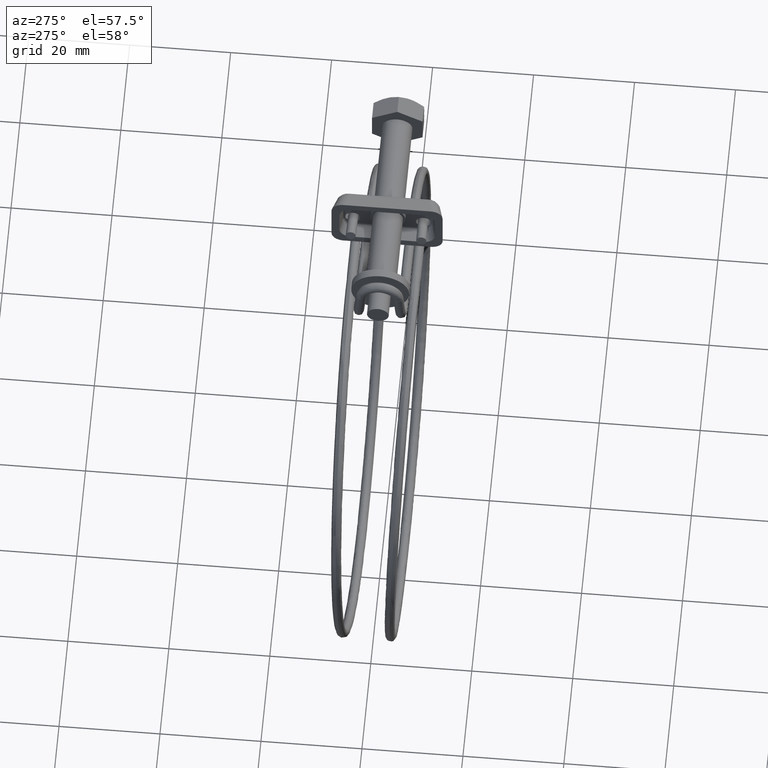
[diagram: clean part render]
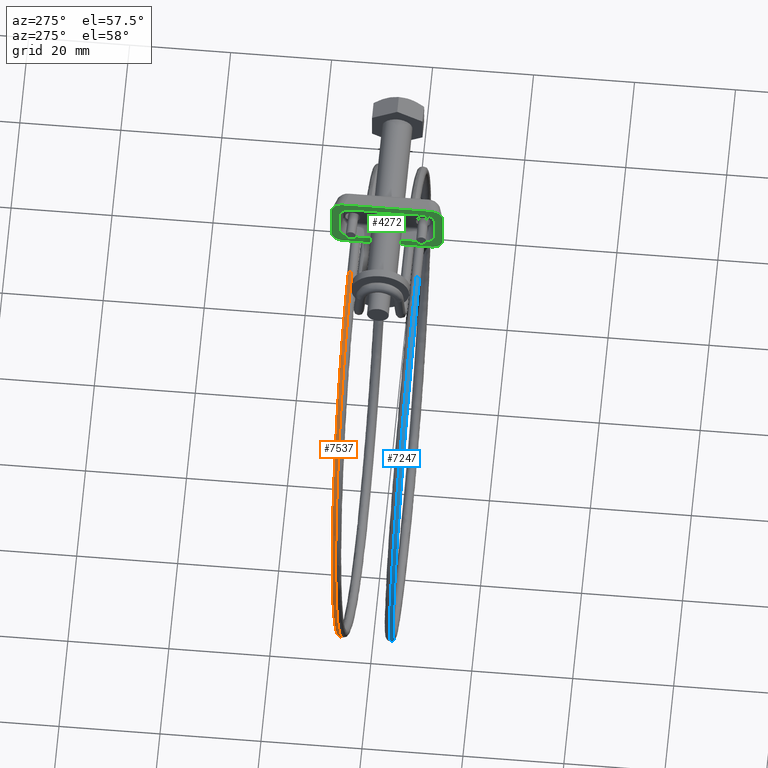
[diagram: same view with three faces highlighted in distinct colors, each labeled with its STEP entity id]
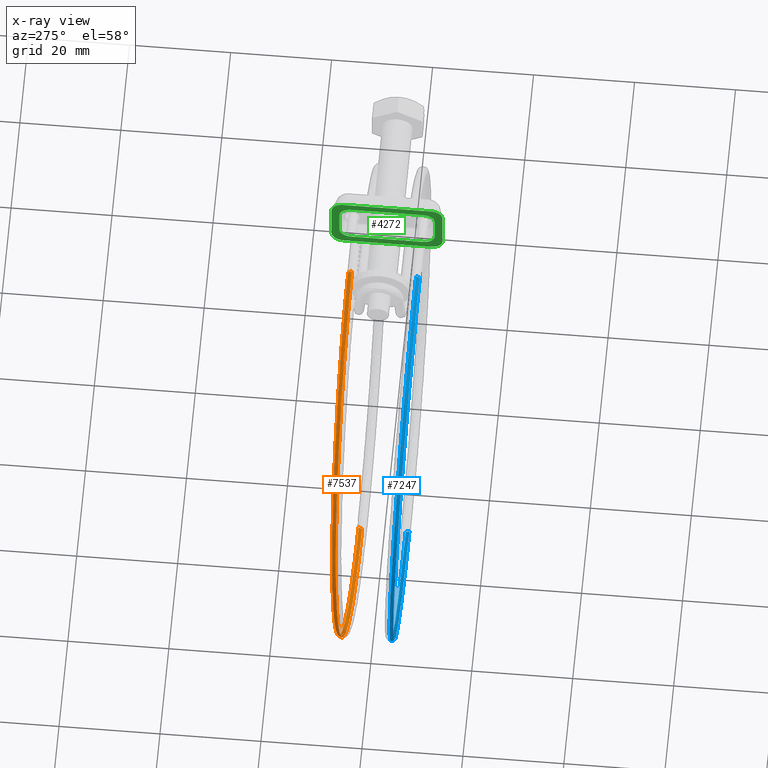
[diagram: x-ray of the same camera — body ghosted, the three highlighted faces saturated]
A machine part, auxiliary view with three faces highlighted in distinct colors.
The next image is the same camera in x-ray (body ghosted, the three faces saturated) — at least one of them is partly hidden behind the body in this view.
Their STEP definitions:

[orange] entity #7537 — the highlighted face is a freeform B-spline surface patch.
#5705=CARTESIAN_POINT('',(-30.049999999999240,6.353676709967662,-6.850955199523075));
#5706=VERTEX_POINT('',#5705);
#5783=CARTESIAN_POINT('',(-30.049999999999240,7.068152112521496,-7.197955006450780));
#5784=VERTEX_POINT('',#5783);
#5796=CARTESIAN_POINT('',(-30.049999999999230,6.353676709967664,-6.850955199523041));
#5797=CARTESIAN_POINT('',(-30.049999999999230,6.615226288915842,-6.862389236607092));
#5798=CARTESIAN_POINT('',(-30.049999999999230,6.870458320393396,-6.981423124156530));
#5799=CARTESIAN_POINT('',(-30.049999999999230,7.054391320979800,-7.182173126469506));
#5800=CARTESIAN_POINT('',(-30.049999999999230,7.061337033208039,-7.190009159293809));
#5801=CARTESIAN_POINT('',(-30.049999999999240,7.068152112521496,-7.197955006450780));
#5802=B_SPLINE_CURVE_WITH_KNOTS('',3,(#5796,#5797,#5798,#5799,#5800,#5801),.UNSPECIFIED.,.F.,.U.,(4,2,4),(0.0,0.125000000000000,0.130000190141412),.UNSPECIFIED.);
#5803=EDGE_CURVE('',#5706,#5784,#5802,.T.);
#6621=CARTESIAN_POINT('',(-30.049999996519482,4.312567047723819,-100.849843094641700));
#6622=VERTEX_POINT('',#6621);
#6638=CARTESIAN_POINT('',(-30.050000000001148,5.028950799201400,-100.534536873659600));
#6639=VERTEX_POINT('',#6638);
#6640=CARTESIAN_POINT('',(-30.049999996519482,4.312567047723819,-100.849843094641700));
#6641=CARTESIAN_POINT('',(-30.049999997574009,4.570108268789253,-100.846479671048000));
#6642=CARTESIAN_POINT('',(-30.049999998803720,4.824950524668435,-100.739239819360510));
#6643=CARTESIAN_POINT('',(-30.049999999915190,5.014513843253244,-100.549700837089010));
#6644=CARTESIAN_POINT('',(-30.049999999958320,5.021795177343359,-100.542176566126800));
#6645=CARTESIAN_POINT('',(-30.050000000001148,5.028950799201400,-100.534536873659600));
#6646=B_SPLINE_CURVE_WITH_KNOTS('',3,(#6640,#6641,#6642,#6643,#6644,#6645),.UNSPECIFIED.,.F.,.U.,(4,2,4),(0.002000191899729,0.125000000000000,0.130000190141358),.UNSPECIFIED.);
#6647=EDGE_CURVE('',#6622,#6639,#6646,.T.);
#7420=CARTESIAN_POINT('',(-30.049999999999240,7.068152112521496,-7.197955006450780));
#7421=CARTESIAN_POINT('',(-36.160116921835588,7.068371882910762,-7.197988453337161));
#7422=CARTESIAN_POINT('',(-42.265746676671263,7.041612742717636,-8.412695671230223));
#7423=CARTESIAN_POINT('',(-53.553609727583158,6.939458790373820,-13.088399014150310));
#7424=CARTESIAN_POINT('',(-58.730404985897103,6.863884518831451,-16.547519937898610));
#7425=CARTESIAN_POINT('',(-67.369534526239903,6.675134492660512,-25.186824712259341));
#7426=CARTESIAN_POINT('',(-70.828473455190348,6.562032997784112,-30.363609608668309));
#7427=CARTESIAN_POINT('',(-75.503850253080870,6.315424343548799,-41.651170024668332));
#7428=CARTESIAN_POINT('',(-76.718451300662508,6.182014151884658,-47.757507222206172));
#7429=CARTESIAN_POINT('',(-76.718451300662508,5.915088832538879,-59.974984657902311));
#7430=CARTESIAN_POINT('',(-75.503850253081481,5.781678640870944,-66.081321855512314));
#7431=CARTESIAN_POINT('',(-70.828473455191357,5.535069986643213,-77.368882271367852));
#7432=CARTESIAN_POINT('',(-67.369534526289257,5.421968491764744,-82.545667167741939));
#7433=CARTESIAN_POINT('',(-58.730404985850562,5.233218465590345,-91.184971942318015));
#7434=CARTESIAN_POINT('',(-53.553609727574852,5.157644194062054,-94.644092865877795));
#7435=CARTESIAN_POINT('',(-42.265746676683101,5.055490241693510,-99.319796208960767));
#7436=CARTESIAN_POINT('',(-36.160116956295120,5.028951531033727,-100.534536885006900));
#7437=CARTESIAN_POINT('',(-30.050000000001148,5.028950799201400,-100.534536873659600));
#7438=B_SPLINE_CURVE_WITH_KNOTS('',3,(#7420,#7421,#7422,#7423,#7424,#7425,#7426,#7427,#7428,#7429,#7430,#7431,#7432,#7433,#7434,#7435,#7436,#7437),.UNSPECIFIED.,.F.,.U.,(4,2,2,2,2,2,2,2,4),(0.037631751728579,0.064538594476331,0.091445437224084,0.118352279971836,0.145259122719588,0.172165965467341,0.199072808215093,0.225979650962846,0.252886493710599),.UNSPECIFIED.);
#7439=EDGE_CURVE('',#5784,#6639,#7438,.T.);
#7445=CARTESIAN_POINT('',(-30.049999999999240,6.353676709967662,-6.850955199523075));
#7446=CARTESIAN_POINT('',(-36.202801276756468,6.353855767857408,-6.851964725273659));
#7447=CARTESIAN_POINT('',(-42.352942228809717,6.327138886733544,-8.073687392428404));
#7448=CARTESIAN_POINT('',(-48.036801800559239,6.276019646372554,-10.428023610977490));
#7449=CARTESIAN_POINT('',(-53.721187306125863,6.224895675891675,-12.782577678862671));
#7450=CARTESIAN_POINT('',(-58.934574776243217,6.149239658608952,-16.266464249497741));
#7451=CARTESIAN_POINT('',(-63.284734426197559,6.054777983863750,-20.616733131959180));
#7452=CARTESIAN_POINT('',(-67.635227731822468,5.960309063942287,-24.967335678469279));
#7453=CARTESIAN_POINT('',(-71.118737071128919,5.847107369332308,-30.180748006341251));
#7454=CARTESIAN_POINT('',(-73.472991635519620,5.723688624451530,-35.864543154082703));
#7455=CARTESIAN_POINT('',(-75.827385772590731,5.600262562653840,-41.548675267306002));
#7456=CARTESIAN_POINT('',(-77.050348629244027,5.466726498079639,-47.698264299555419));
#7457=CARTESIAN_POINT('',(-77.050356061689172,5.333137276212516,-53.850399479916462));
#7458=CARTESIAN_POINT('',(-77.050363737835340,5.195167822934789,-60.204255842440674));
#7459=CARTESIAN_POINT('',(-75.745720306392059,5.057262931040140,-66.555405377104478));
#7460=CARTESIAN_POINT('',(-73.237824865270497,4.930490181994941,-72.393815752060291));
#7461=CARTESIAN_POINT('',(-70.690369180737008,4.801717684185102,-78.324322843563706));
#7462=CARTESIAN_POINT('',(-66.908519107806299,4.684466493409830,-83.722225970584375));
#7463=CARTESIAN_POINT('',(-62.197859417219803,4.588654300200918,-88.136272478650127));
#7464=CARTESIAN_POINT('',(-57.929511062677982,4.501838473100195,-92.135858393808377));
#7465=CARTESIAN_POINT('',(-52.909879364653648,4.432370804449024,-95.332554827242959));
#7466=CARTESIAN_POINT('',(-47.476261595149957,4.385317453310222,-97.500801816884731));
#7467=CARTESIAN_POINT('',(-41.949734700165472,4.337459539559418,-99.706123540190077));
#7468=CARTESIAN_POINT('',(-36.000800834641062,4.312528522338790,-100.848899198973700));
#7469=CARTESIAN_POINT('',(-30.049999996519482,4.312567047723819,-100.849843094641700));
#7470=B_SPLINE_CURVE_WITH_KNOTS('',3,(#7445,#7446,#7447,#7448,#7449,#7450,#7451,#7452,#7453,#7454,#7455,#7456,#7457,#7458,#7459,#7460,#7461,#7462,#7463,#7464,#7465,#7466,#7467,#7468,#7469),.UNSPECIFIED.,.F.,.U.,(4,3,3,3,3,3,3,3,4),(0.0,18.458404086546160,36.918516149652312,55.380044096671902,73.842666540853784,92.910656376370213,112.279430011283000,129.829556427606490,147.679771471173890),.UNSPECIFIED.);
#7471=EDGE_CURVE('',#5706,#6622,#7470,.T.);
#7478=CARTESIAN_POINT('',(-29.311578091289132,6.349569571912408,-6.850772750363954));
#7479=CARTESIAN_POINT('',(-29.311654120045841,6.624368262090663,-6.861615675998201));
#7480=CARTESIAN_POINT('',(-29.313600515151698,6.892610686474238,-6.991362736083935));
#7481=CARTESIAN_POINT('',(-29.316833772481392,7.070783530089892,-7.201049758838473));
#7482=CARTESIAN_POINT('',(-29.557715256571829,6.349557527677900,-6.851713598119168));
#7483=CARTESIAN_POINT('',(-29.557765942771809,6.624356219540911,-6.862556426812932));
#7484=CARTESIAN_POINT('',(-29.559063548781349,6.892598687034219,-6.992301005130524));
#7485=CARTESIAN_POINT('',(-29.561219069070528,7.070771602157074,-7.201983905311978));
#7486=CARTESIAN_POINT('',(-35.957009695807777,6.350866161227896,-6.801835531668514));
#7487=CARTESIAN_POINT('',(-35.956401503888927,6.625664729771795,-6.812683494938008));
#7488=CARTESIAN_POINT('',(-35.940831319412219,6.893904039612896,-6.942559522269391));
#7489=CARTESIAN_POINT('',(-35.914966882661147,7.072071706707952,-7.152460779636734));
#7490=CARTESIAN_POINT('',(-48.504220869298322,6.296056883647588,-9.297848046184145));
#7491=CARTESIAN_POINT('',(-48.502320810620432,6.570861081271622,-9.308439004978290));
#7492=CARTESIAN_POINT('',(-48.453677835630870,6.839244500713429,-9.431735518383192));
#7493=CARTESIAN_POINT('',(-48.372874480424358,7.017651559100163,-9.630707205228863));
#7494=CARTESIAN_POINT('',(-64.149604537076499,6.067746301761224,-19.752061228719889));
#7495=CARTESIAN_POINT('',(-64.146093974944264,6.342574007312754,-19.761575990228181));
#7496=CARTESIAN_POINT('',(-64.056220863523009,6.611559247621061,-19.857321019365038));
#7497=CARTESIAN_POINT('',(-63.906928001458482,6.790966020579288,-20.010525514365529));
#7498=CARTESIAN_POINT('',(-74.603154397246982,5.725935324877046,-35.396444857165307));
#7499=CARTESIAN_POINT('',(-74.598568104584984,6.000798206024785,-35.404349626791593));
#7500=CARTESIAN_POINT('',(-74.481155458007464,6.270683968905658,-35.458877615872503));
#7501=CARTESIAN_POINT('',(-74.286115253193245,6.451586646556726,-35.543614359172608));
#7502=CARTESIAN_POINT('',(-78.273166239907695,5.322756641785001,-53.850394731430256));
#7503=CARTESIAN_POINT('',(-78.268202364403251,5.597661005564730,-53.856400793504193));
#7504=CARTESIAN_POINT('',(-78.141123304380855,5.868608755975841,-53.862320397638470));
#7505=CARTESIAN_POINT('',(-77.930025721612978,6.051275555900698,-53.866311244932987));
#7506=CARTESIAN_POINT('',(-74.603166441910091,4.919577576702126,-72.304362089969018));
#7507=CARTESIAN_POINT('',(-74.598580148129074,5.194523423151954,-72.308469442726036));
#7508=CARTESIAN_POINT('',(-74.481167472489560,5.466533162084009,-72.265780616505097));
#7509=CARTESIAN_POINT('',(-74.286127219496777,5.650964085930852,-72.189025492402720));
#7510=CARTESIAN_POINT('',(-64.149602213349837,4.577782567178864,-87.948713274191689));
#7511=CARTESIAN_POINT('',(-64.146091651437132,4.852763588373964,-87.951210638510119));
#7512=CARTESIAN_POINT('',(-64.056218545617597,5.125673828111897,-87.867304853654574));
#7513=CARTESIAN_POINT('',(-63.906925692848048,5.311600620307202,-87.722082112778494));
#7514=CARTESIAN_POINT('',(-48.504221647717252,4.349380574023034,-98.402920053054331));
#7515=CARTESIAN_POINT('',(-48.502321588946351,4.624385107808542,-98.404341219724330));
#7516=CARTESIAN_POINT('',(-48.453678612142511,4.897897287616204,-98.292883984151160));
#7517=CARTESIAN_POINT('',(-48.372875253815792,5.084823993504321,-98.101894108795406));
#7518=CARTESIAN_POINT('',(-35.957009566955129,4.294848175717587,-100.898972573336290));
#7519=CARTESIAN_POINT('',(-35.956401375054632,4.569858324477091,-100.900136734594600));
#7520=CARTESIAN_POINT('',(-35.940831190850787,4.843514253404149,-100.782099829808000));
#7521=CARTESIAN_POINT('',(-35.914966754571623,5.030679748417191,-100.580180121223190));
#7522=CARTESIAN_POINT('',(-29.557715251410421,4.295937896006179,-100.849061452425600));
#7523=CARTESIAN_POINT('',(-29.557765937610700,4.570947932595407,-100.850230749135210));
#7524=CARTESIAN_POINT('',(-29.559063543635670,4.844600988740802,-100.732325419844600));
#7525=CARTESIAN_POINT('',(-29.561219063950809,5.031761711588420,-100.530624282264400));
#7526=CARTESIAN_POINT('',(-29.311578083626191,4.295917340582109,-100.850001000005090));
#7527=CARTESIAN_POINT('',(-29.311654112383341,4.570927379289620,-100.851170199809000));
#7528=CARTESIAN_POINT('',(-29.313600507512120,4.844580489620191,-100.733262393708600));
#7529=CARTESIAN_POINT('',(-29.316833764880268,5.031741302475912,-100.531557141932790));
#7530=B_SPLINE_SURFACE_WITH_KNOTS('',3,3,((#7478,#7482,#7486,#7490,#7494,#7498,#7502,#7506,#7510,#7514,#7518,#7522,#7526),(#7479,#7483,#7487,#7491,#7495,#7499,#7503,#7507,#7511,#7515,#7519,#7523,#7527),(#7480,#7484,#7488,#7492,#7496,#7500,#7504,#7508,#7512,#7516,#7520,#7524,#7528),(#7481,#7485,#7489,#7493,#7497,#7501,#7505,#7509,#7513,#7517,#7521,#7525,#7529)),.UNSPECIFIED.,.F.,.F.,.U.,(4,4),(4,1,1,1,1,1,1,1,1,1,4),(0.0,0.825543441013491),(0.0,0.738416891231972,19.198839584216639,37.659262277201300,56.119684970185908,74.580107663170494,93.040530356155259,111.500953049139890,129.961375742124600,148.421798435109310,149.160215329834500),.UNSPECIFIED.);
#7531=ORIENTED_EDGE('',*,*,#6647,.F.);
#7532=ORIENTED_EDGE('',*,*,#7471,.F.);
#7533=ORIENTED_EDGE('',*,*,#5803,.T.);
#7534=ORIENTED_EDGE('',*,*,#7439,.T.);
#7535=EDGE_LOOP('',(#7531,#7532,#7533,#7534));
#7536=FACE_OUTER_BOUND('',#7535,.T.);
#7537=ADVANCED_FACE('',(#7536),#7530,.T.);

[blue] entity #7247 — the highlighted face is a freeform B-spline surface patch.
#4595=CARTESIAN_POINT('',(-30.050000000001202,-6.353676782668250,-6.850955199523090));
#4596=VERTEX_POINT('',#4595);
#4604=CARTESIAN_POINT('',(-30.050000000001202,-7.068152185222118,-7.197955006450738));
#4605=VERTEX_POINT('',#4604);
#4606=CARTESIAN_POINT('',(-30.050000000001202,-6.353676782668250,-6.850955199523090));
#4607=CARTESIAN_POINT('',(-30.050000000001202,-6.615226361616431,-6.862389236607090));
#4608=CARTESIAN_POINT('',(-30.050000000001202,-6.870458393093999,-6.981423124156490));
#4609=CARTESIAN_POINT('',(-30.050000000001202,-7.054391393680445,-7.182173126469433));
#4610=CARTESIAN_POINT('',(-30.050000000001202,-7.061337105908689,-7.190009159293738));
#4611=CARTESIAN_POINT('',(-30.050000000001202,-7.068152185222118,-7.197955006450738));
#4612=B_SPLINE_CURVE_WITH_KNOTS('',3,(#4606,#4607,#4608,#4609,#4610,#4611),.UNSPECIFIED.,.F.,.U.,(4,2,4),(0.0,0.125000000000000,0.130000190141414),.UNSPECIFIED.);
#4613=EDGE_CURVE('',#4596,#4605,#4612,.T.);
#6106=CARTESIAN_POINT('',(-30.049999999999081,-5.028950799199253,-100.534536873659600));
#6107=VERTEX_POINT('',#6106);
#6119=CARTESIAN_POINT('',(-30.049999999351751,-4.306285019941678,-100.849961522102010));
#6120=VERTEX_POINT('',#6119);
#6121=CARTESIAN_POINT('',(-30.049999999351751,-4.306285019941678,-100.849961522102010));
#6122=CARTESIAN_POINT('',(-30.049999999547641,-4.565959695528898,-100.848258487153400));
#6123=CARTESIAN_POINT('',(-30.049999999776649,-4.823469649266651,-100.740740414047390));
#6124=CARTESIAN_POINT('',(-30.049999999983079,-5.014513864648077,-100.549702234600700));
#6125=CARTESIAN_POINT('',(-30.049999999991030,-5.021795188001790,-100.542177262410600));
#6126=CARTESIAN_POINT('',(-30.049999999999081,-5.028950799199253,-100.534536873659600));
#6127=B_SPLINE_CURVE_WITH_KNOTS('',3,(#6121,#6122,#6123,#6124,#6125,#6126),.UNSPECIFIED.,.F.,.U.,(4,2,4),(0.001000048621619,0.125000000000000,0.130000190141357),.UNSPECIFIED.);
#6128=EDGE_CURVE('',#6120,#6107,#6127,.T.);
#7137=CARTESIAN_POINT('',(-30.049999999999081,-5.028950799199253,-100.534536873659600));
#7138=CARTESIAN_POINT('',(-36.160116956307391,-5.028951531034189,-100.534536884988300));
#7139=CARTESIAN_POINT('',(-42.265746676662182,-5.055490241696852,-99.319796208832628));
#7140=CARTESIAN_POINT('',(-53.553609727592892,-5.157644194058678,-94.644092866007028));
#7141=CARTESIAN_POINT('',(-58.730404985870287,-5.233218465593756,-91.184971942274800));
#7142=CARTESIAN_POINT('',(-67.369534526265937,-5.421968491761252,-82.545667167788480));
#7143=CARTESIAN_POINT('',(-70.828473455147247,-5.535069986644651,-77.368882271534986));
#7144=CARTESIAN_POINT('',(-75.503850253124170,-5.781678640869447,-66.081321855348065));
#7145=CARTESIAN_POINT('',(-76.718451300704189,-5.915088832538731,-59.974984657924601));
#7146=CARTESIAN_POINT('',(-76.718451300620629,-6.182014151884770,-47.757507222186547));
#7147=CARTESIAN_POINT('',(-75.503850253041392,-6.315424343543600,-41.651170024679509));
#7148=CARTESIAN_POINT('',(-70.828473455230963,-6.562032997789296,-30.363609608659790));
#7149=CARTESIAN_POINT('',(-67.369534526202543,-6.675134492659621,-25.186824712282242));
#7150=CARTESIAN_POINT('',(-58.730404985937533,-6.863884518832323,-16.547519937878739));
#7151=CARTESIAN_POINT('',(-53.553609727626451,-6.939458790367177,-13.088399014210481));
#7152=CARTESIAN_POINT('',(-42.265746676630847,-7.041612742724309,-8.412695671171171));
#7153=CARTESIAN_POINT('',(-36.160116921864663,-7.068371955621887,-7.197988453295029));
#7154=CARTESIAN_POINT('',(-30.050000000001202,-7.068152185222118,-7.197955006450738));
#7155=B_SPLINE_CURVE_WITH_KNOTS('',3,(#7137,#7138,#7139,#7140,#7141,#7142,#7143,#7144,#7145,#7146,#7147,#7148,#7149,#7150,#7151,#7152,#7153,#7154),.UNSPECIFIED.,.F.,.U.,(4,2,2,2,2,2,2,2,4),(0.747113506343457,0.774020349091209,0.800927191838962,0.827834034586715,0.854740877334467,0.881647720082219,0.908554562829972,0.935461405577724,0.962368248325477),.UNSPECIFIED.);
#7156=EDGE_CURVE('',#6107,#4605,#7155,.T.);
#7161=CARTESIAN_POINT('',(-30.049999999351751,-4.306285019941678,-100.849961522102010));
#7162=CARTESIAN_POINT('',(-36.203504393758507,-4.306285757051541,-100.849961522080900));
#7163=CARTESIAN_POINT('',(-42.352489256162471,-4.332931154076809,-99.626595199726566));
#7164=CARTESIAN_POINT('',(-53.720498020976869,-4.435495669345751,-94.917695469840808));
#7165=CARTESIAN_POINT('',(-58.934044962970212,-4.511373641283750,-91.434017312028345));
#7166=CARTESIAN_POINT('',(-67.634498465731696,-4.700881931931798,-82.733390819719958));
#7167=CARTESIAN_POINT('',(-71.117985892908251,-4.814437685580738,-77.519865885709891));
#7168=CARTESIAN_POINT('',(-75.826542089642970,-5.062036604196178,-66.152206436664684));
#7169=CARTESIAN_POINT('',(-77.049761421335319,-5.195982415890676,-60.002541565695402));
#7170=CARTESIAN_POINT('',(-77.049761421336527,-5.463979386721374,-47.698375155930677));
#7171=CARTESIAN_POINT('',(-75.826542089791943,-5.597925198406723,-41.548710284919622));
#7172=CARTESIAN_POINT('',(-71.117985893255579,-5.845524117040455,-30.181050835957929));
#7173=CARTESIAN_POINT('',(-67.634498466006050,-5.959079870677621,-24.967525901886159));
#7174=CARTESIAN_POINT('',(-58.934044963615200,-6.148588161330892,-16.266899409619580));
#7175=CARTESIAN_POINT('',(-53.720498021564538,-6.224466133271544,-12.783221251930970));
#7176=CARTESIAN_POINT('',(-42.352489256773197,-6.327030648530020,-8.074321521752795));
#7177=CARTESIAN_POINT('',(-36.203504359649628,-6.353897322607622,-6.850989002045928));
#7178=CARTESIAN_POINT('',(-30.050000000001202,-6.353676782668250,-6.850955199523090));
#7179=B_SPLINE_CURVE_WITH_KNOTS('',3,(#7161,#7162,#7163,#7164,#7165,#7166,#7167,#7168,#7169,#7170,#7171,#7172,#7173,#7174,#7175,#7176,#7177,#7178),.UNSPECIFIED.,.F.,.U.,(4,2,2,2,2,2,2,2,4),(0.747113506343457,0.774020349091209,0.800927191838962,0.827834034586715,0.854740877334467,0.881647720082219,0.908554562829972,0.935461405577724,0.962368248325477),.UNSPECIFIED.);
#7180=EDGE_CURVE('',#6120,#4596,#7179,.T.);
#7188=CARTESIAN_POINT('',(-29.311578086599379,-4.295917686003638,-100.850001000010200));
#7189=CARTESIAN_POINT('',(-29.311654116868191,-4.570927607874569,-100.851170101153700));
#7190=CARTESIAN_POINT('',(-29.313600511706628,-4.844580566843309,-100.733262309736600));
#7191=CARTESIAN_POINT('',(-29.316833767696210,-5.031741301299427,-100.531557143188610));
#7192=CARTESIAN_POINT('',(-29.557715253391869,-4.295938241427654,-100.849061452436200));
#7193=CARTESIAN_POINT('',(-29.557765940599971,-4.570948161180260,-100.850230650487300));
#7194=CARTESIAN_POINT('',(-29.559063546431378,-4.844601065963830,-100.732325335879810));
#7195=CARTESIAN_POINT('',(-29.561219065827459,-5.031761710411885,-100.530624283526510));
#7196=CARTESIAN_POINT('',(-35.957009566963833,-4.294848521147707,-100.898972573032590));
#7197=CARTESIAN_POINT('',(-35.956401362974333,-4.569858553072050,-100.900136635542590));
#7198=CARTESIAN_POINT('',(-35.940831181034930,-4.843514330636649,-100.782099745456610));
#7199=CARTESIAN_POINT('',(-35.914966755680432,-5.030679747248798,-100.580180122216500));
#7200=CARTESIAN_POINT('',(-48.504221644772080,-4.349380919437140,-98.402920053532327));
#7201=CARTESIAN_POINT('',(-48.502321548285373,-4.624385336278013,-98.404341126525452));
#7202=CARTESIAN_POINT('',(-48.453678578518343,-4.897897364745471,-98.292883904706983));
#7203=CARTESIAN_POINT('',(-48.372875254321883,-5.084823992331991,-98.101894110041670));
#7204=CARTESIAN_POINT('',(-64.149602207868611,-4.577782912558169,-87.948713276199712));
#7205=CARTESIAN_POINT('',(-64.146091576233886,-4.852763816339794,-87.951210568244861));
#7206=CARTESIAN_POINT('',(-64.056218483473586,-5.125673904823732,-87.867304793127190));
#7207=CARTESIAN_POINT('',(-63.906925693776422,-5.311600619141457,-87.722082113626541));
#7208=CARTESIAN_POINT('',(-74.603166434756588,-4.919577922024709,-72.304362094605636));
#7209=CARTESIAN_POINT('',(-74.598580049872282,-5.194523650363219,-72.308469407055071));
#7210=CARTESIAN_POINT('',(-74.481167391297674,-5.466533238171227,-72.265780584594665));
#7211=CARTESIAN_POINT('',(-74.286127220710910,-5.650964084770963,-72.189025492928479));
#7212=CARTESIAN_POINT('',(-78.273166232172585,-5.322756987045505,-53.850394738984512));
#7213=CARTESIAN_POINT('',(-78.268202258090568,-5.597661231889985,-53.856400798457578));
#7214=CARTESIAN_POINT('',(-78.141123216512781,-5.868608831331937,-53.862320399303563));
#7215=CARTESIAN_POINT('',(-77.930025722925095,-6.051275554756184,-53.866311244922542));
#7216=CARTESIAN_POINT('',(-74.603154390068966,-5.725935670068909,-35.396444867665863));
#7217=CARTESIAN_POINT('',(-74.598568006317933,-6.000798431457126,-35.404349672405793));
#7218=CARTESIAN_POINT('',(-74.481155376792486,-6.270684043524945,-35.458877651110022));
#7219=CARTESIAN_POINT('',(-74.286115254395071,-6.451586645419811,-35.543614358640433));
#7220=CARTESIAN_POINT('',(-64.149604531589631,-6.067746651900706,-19.752061241733010));
#7221=CARTESIAN_POINT('',(-64.146093899736968,-6.342574236993638,-19.761576070324509));
#7222=CARTESIAN_POINT('',(-64.056220801369051,-6.611559326618499,-19.857321083119309));
#7223=CARTESIAN_POINT('',(-63.906928002375913,-6.790966024453085,-20.010525513406130));
#7224=CARTESIAN_POINT('',(-48.504220866382632,-6.296057203756101,-9.297848060889276));
#7225=CARTESIAN_POINT('',(-48.502320769968641,-6.570861280457974,-9.308439108144469));
#7226=CARTESIAN_POINT('',(-48.453677802041312,-6.839244549298706,-9.431735601224787));
#7227=CARTESIAN_POINT('',(-48.372874480954430,-7.017651532983950,-9.630707204015248));
#7228=CARTESIAN_POINT('',(-35.957009694866002,-6.350866572322042,-6.801835546704368));
#7229=CARTESIAN_POINT('',(-35.956401490868330,-6.625665019829264,-6.812683603536988));
#7230=CARTESIAN_POINT('',(-35.940831308646892,-6.893904179100467,-6.942559609565794));
#7231=CARTESIAN_POINT('',(-35.914966882830392,-7.072071771595945,-7.152460778271157));
#7232=CARTESIAN_POINT('',(-29.557715256658891,-6.349557945416839,-6.851713613208687));
#7233=CARTESIAN_POINT('',(-29.557765943865508,-6.624356516245613,-6.862556535363961));
#7234=CARTESIAN_POINT('',(-29.559063549687981,-6.892598833162338,-6.992301092401863));
#7235=CARTESIAN_POINT('',(-29.561219069065590,-7.070771673682820,-7.201983904011658));
#7236=CARTESIAN_POINT('',(-29.311578091418880,-6.349569989707070,-6.850772765455328));
#7237=CARTESIAN_POINT('',(-29.311654121685539,-6.624368558850954,-6.861615784553012));
#7238=CARTESIAN_POINT('',(-29.313600516510750,-6.892610832657732,-6.991362823358692));
#7239=CARTESIAN_POINT('',(-29.316833772473110,-7.070783601671062,-7.201049757539824));
#7240=B_SPLINE_SURFACE_WITH_KNOTS('',3,3,((#7188,#7192,#7196,#7200,#7204,#7208,#7212,#7216,#7220,#7224,#7228,#7232,#7236),(#7189,#7193,#7197,#7201,#7205,#7209,#7213,#7217,#7221,#7225,#7229,#7233,#7237),(#7190,#7194,#7198,#7202,#7206,#7210,#7214,#7218,#7222,#7226,#7230,#7234,#7238),(#7191,#7195,#7199,#7203,#7207,#7211,#7215,#7219,#7223,#7227,#7231,#7235,#7239)),.UNSPECIFIED.,.F.,.F.,.U.,(4,4),(4,1,1,1,1,1,1,1,1,1,4),(0.0,0.825543093578100),(0.0,0.738416891750371,19.198839581863009,37.659262271976260,56.119684962089579,74.580107652202216,93.040530342314867,111.500953032428100,129.961375722540790,148.421798412654110,149.160215303758010),.UNSPECIFIED.);
#7241=ORIENTED_EDGE('',*,*,#4613,.F.);
#7242=ORIENTED_EDGE('',*,*,#7180,.F.);
#7243=ORIENTED_EDGE('',*,*,#6128,.T.);
#7244=ORIENTED_EDGE('',*,*,#7156,.T.);
#7245=EDGE_LOOP('',(#7241,#7242,#7243,#7244));
#7246=FACE_OUTER_BOUND('',#7245,.T.);
#7247=ADVANCED_FACE('',(#7246),#7240,.T.);

[green] entity #4272 — the highlighted face is a freeform B-spline surface patch.
#3765=CARTESIAN_POINT('',(-38.700000000000003,-9.453835362344231,-2.455375465696455));
#3766=VERTEX_POINT('',#3765);
#3774=CARTESIAN_POINT('',(-38.700000000000003,-7.096346438622450,-4.897999379502131));
#3775=VERTEX_POINT('',#3774);
#3781=CARTESIAN_POINT('',(-38.700000000000003,-9.453835362344169,-2.455375465696495));
#3782=CARTESIAN_POINT('',(-38.699999999999996,-9.453835362344108,-4.897999379502226));
#3783=CARTESIAN_POINT('',(-38.700000000000003,-7.096346438622450,-4.897999379502131));
#3791=(BOUNDED_CURVE()B_SPLINE_CURVE(2,(#3781,#3782,#3783),.UNSPECIFIED.,.F.,.U.)CURVE()GEOMETRIC_REPRESENTATION_ITEM()QUASI_UNIFORM_CURVE()RATIONAL_B_SPLINE_CURVE((1.0,0.736600277350803,1.0))REPRESENTATION_ITEM(''));
#3792=EDGE_CURVE('',#3766,#3775,#3791,.T.);
#3811=CARTESIAN_POINT('',(-38.700000000000003,7.096346438622000,-4.897999379502131));
#3812=VERTEX_POINT('',#3811);
#3820=CARTESIAN_POINT('',(-38.700000000000003,9.453835362344339,-2.455375465696360));
#3821=VERTEX_POINT('',#3820);
#3827=CARTESIAN_POINT('',(-38.700000000000003,7.096346438622005,-4.897999379502140));
#3828=CARTESIAN_POINT('',(-38.699999999999989,9.453835362344405,-4.897999379502303));
#3829=CARTESIAN_POINT('',(-38.700000000000003,9.453835362344339,-2.455375465696360));
#3837=(BOUNDED_CURVE()B_SPLINE_CURVE(2,(#3827,#3828,#3829),.UNSPECIFIED.,.F.,.U.)CURVE()GEOMETRIC_REPRESENTATION_ITEM()QUASI_UNIFORM_CURVE()RATIONAL_B_SPLINE_CURVE((1.0,0.736600277350721,1.0))REPRESENTATION_ITEM(''));
#3838=EDGE_CURVE('',#3812,#3821,#3837,.T.);
#3857=CARTESIAN_POINT('',(-38.700000000000003,9.453835362344339,2.455374465696385));
#3858=VERTEX_POINT('',#3857);
#3865=CARTESIAN_POINT('',(-38.700000000000003,7.096346438622230,4.897998379502161));
#3866=VERTEX_POINT('',#3865);
#3872=CARTESIAN_POINT('',(-38.700000000000003,9.453835362344339,2.455374465696385));
#3873=CARTESIAN_POINT('',(-38.699999999999989,9.453835362344014,4.897998379502210));
#3874=CARTESIAN_POINT('',(-38.700000000000003,7.096346438622204,4.897998379502179));
#3882=(BOUNDED_CURVE()B_SPLINE_CURVE(2,(#3872,#3873,#3874),.UNSPECIFIED.,.F.,.U.)CURVE()GEOMETRIC_REPRESENTATION_ITEM()QUASI_UNIFORM_CURVE()RATIONAL_B_SPLINE_CURVE((1.0,0.736600277350804,1.0))REPRESENTATION_ITEM(''));
#3883=EDGE_CURVE('',#3858,#3866,#3882,.T.);
#3902=CARTESIAN_POINT('',(-38.700000000000003,-7.096346438622230,4.897998379502161));
#3903=VERTEX_POINT('',#3902);
#3910=CARTESIAN_POINT('',(-38.700000000000003,-9.453835362344231,2.455374465696380));
#3911=VERTEX_POINT('',#3910);
#3917=CARTESIAN_POINT('',(-38.700000000000003,-7.096346438622241,4.897998379502179));
#3918=CARTESIAN_POINT('',(-38.700000000000003,-9.453835362344249,4.897998379502205));
#3919=CARTESIAN_POINT('',(-38.700000000000003,-9.453835362344169,2.455374465696290));
#3927=(BOUNDED_CURVE()B_SPLINE_CURVE(2,(#3917,#3918,#3919),.UNSPECIFIED.,.F.,.U.)CURVE()GEOMETRIC_REPRESENTATION_ITEM()QUASI_UNIFORM_CURVE()RATIONAL_B_SPLINE_CURVE((1.0,0.736600277350776,1.0))REPRESENTATION_ITEM(''));
#3928=EDGE_CURVE('',#3903,#3911,#3927,.T.);
#3947=CARTESIAN_POINT('',(-38.700000000000003,-11.0,4.057375086194185));
#3948=VERTEX_POINT('',#3947);
#3955=CARTESIAN_POINT('',(-38.700000000000003,-8.642511158470031,6.500000000000110));
#3956=VERTEX_POINT('',#3955);
#3962=CARTESIAN_POINT('',(-38.700000000000003,-11.0,4.057375086194185));
#3963=CARTESIAN_POINT('',(-38.700000000000003,-10.999999223404537,6.499998007051939));
#3964=CARTESIAN_POINT('',(-38.700000000000003,-8.642511158470031,6.500000000000110));
#3972=(BOUNDED_CURVE()B_SPLINE_CURVE(2,(#3962,#3963,#3964),.UNSPECIFIED.,.F.,.U.)CURVE()GEOMETRIC_REPRESENTATION_ITEM()QUASI_UNIFORM_CURVE()RATIONAL_B_SPLINE_CURVE((1.0,0.736600485733960,1.0))REPRESENTATION_ITEM(''));
#3973=EDGE_CURVE('',#3948,#3956,#3972,.T.);
#3992=CARTESIAN_POINT('',(-38.700000000000003,-8.642511076278339,-6.500000000000000));
#3993=VERTEX_POINT('',#3992);
#4000=CARTESIAN_POINT('',(-38.700000000000003,-11.0,-4.057376086194156));
#4001=VERTEX_POINT('',#4000);
#4007=CARTESIAN_POINT('',(-38.700000000000003,-8.642511076278327,-6.499999999999980));
#4008=CARTESIAN_POINT('',(-38.699999999999996,-10.999999999999945,-6.499999999999979));
#4009=CARTESIAN_POINT('',(-38.700000000000003,-11.0,-4.057376086194156));
#4017=(BOUNDED_CURVE()B_SPLINE_CURVE(2,(#4007,#4008,#4009),.UNSPECIFIED.,.F.,.U.)CURVE()GEOMETRIC_REPRESENTATION_ITEM()QUASI_UNIFORM_CURVE()RATIONAL_B_SPLINE_CURVE((1.0,0.736600277350831,1.0))REPRESENTATION_ITEM(''));
#4018=EDGE_CURVE('',#3993,#4001,#4017,.T.);
#4037=CARTESIAN_POINT('',(-38.700000000000003,11.000000000000121,-4.057376086194106));
#4038=VERTEX_POINT('',#4037);
#4045=CARTESIAN_POINT('',(-38.700000000000003,8.642511076278229,-6.500000000000000));
#4046=VERTEX_POINT('',#4045);
#4052=CARTESIAN_POINT('',(-38.700000000000003,11.000000000000121,-4.057376086194105));
#4053=CARTESIAN_POINT('',(-38.699999999999996,11.000000000000103,-6.499999999999749));
#4054=CARTESIAN_POINT('',(-38.700000000000003,8.642511076278229,-6.500000000000000));
#4062=(BOUNDED_CURVE()B_SPLINE_CURVE(2,(#4052,#4053,#4054),.UNSPECIFIED.,.F.,.U.)CURVE()GEOMETRIC_REPRESENTATION_ITEM()QUASI_UNIFORM_CURVE()RATIONAL_B_SPLINE_CURVE((1.0,0.736600277350816,1.0))REPRESENTATION_ITEM(''));
#4063=EDGE_CURVE('',#4038,#4046,#4062,.T.);
#4082=CARTESIAN_POINT('',(-38.700000000000003,8.642511158470031,6.500000000000110));
#4083=VERTEX_POINT('',#4082);
#4090=CARTESIAN_POINT('',(-38.700000000000003,11.000000000000121,4.057375086194250));
#4091=VERTEX_POINT('',#4090);
#4097=CARTESIAN_POINT('',(-38.700000000000003,8.642511158470031,6.500000000000110));
#4098=CARTESIAN_POINT('',(-38.699999999999996,11.000000345154032,6.500000075788750));
#4099=CARTESIAN_POINT('',(-38.700000000000003,11.000000000000121,4.057375086194250));
#4107=(BOUNDED_CURVE()B_SPLINE_CURVE(2,(#4097,#4098,#4099),.UNSPECIFIED.,.F.,.U.)CURVE()GEOMETRIC_REPRESENTATION_ITEM()QUASI_UNIFORM_CURVE()RATIONAL_B_SPLINE_CURVE((1.0,0.736600200372209,1.0))REPRESENTATION_ITEM(''));
#4108=EDGE_CURVE('',#4083,#4091,#4107,.T.);
#4122=CARTESIAN_POINT('',(-38.700000000000003,9.453835362344339,-2.455375465696360));
#4123=CARTESIAN_POINT('',(-38.700000000000003,9.453835362344339,2.455374465696385));
#4124=QUASI_UNIFORM_CURVE('',1,(#4122,#4123),.UNSPECIFIED.,.F.,.U.);
#4125=EDGE_CURVE('',#3821,#3858,#4124,.T.);
#4139=CARTESIAN_POINT('',(-38.700000000000003,-9.453835362344231,-2.455375465696455));
#4140=CARTESIAN_POINT('',(-38.700000000000003,-9.453835362344231,2.455374465696380));
#4141=QUASI_UNIFORM_CURVE('',1,(#4139,#4140),.UNSPECIFIED.,.F.,.U.);
#4142=EDGE_CURVE('',#3766,#3911,#4141,.T.);
#4155=CARTESIAN_POINT('',(-38.700000000000003,-7.096346438622450,-4.897999379502131));
#4156=CARTESIAN_POINT('',(-38.700000000000003,7.096346438622000,-4.897999379502131));
#4157=QUASI_UNIFORM_CURVE('',1,(#4155,#4156),.UNSPECIFIED.,.F.,.U.);
#4158=EDGE_CURVE('',#3775,#3812,#4157,.T.);
#4199=CARTESIAN_POINT('',(-38.700000000000003,-7.096346438622230,4.897998379502161));
#4200=CARTESIAN_POINT('',(-38.700000000000003,7.096346438622230,4.897998379502161));
#4201=QUASI_UNIFORM_CURVE('',1,(#4199,#4200),.UNSPECIFIED.,.F.,.U.);
#4202=EDGE_CURVE('',#3903,#3866,#4201,.T.);
#4215=CARTESIAN_POINT('',(-38.700000000000003,11.000000000000121,-4.057376086194106));
#4216=CARTESIAN_POINT('',(-38.700000000000003,11.000000000000121,4.057375086194250));
#4217=QUASI_UNIFORM_CURVE('',1,(#4215,#4216),.UNSPECIFIED.,.F.,.U.);
#4218=EDGE_CURVE('',#4038,#4091,#4217,.T.);
#4231=CARTESIAN_POINT('',(-38.700000000000003,-11.0,-4.057376086194156));
#4232=CARTESIAN_POINT('',(-38.700000000000003,-11.0,4.057375086194185));
#4233=QUASI_UNIFORM_CURVE('',1,(#4231,#4232),.UNSPECIFIED.,.F.,.U.);
#4234=EDGE_CURVE('',#4001,#3948,#4233,.T.);
#4239=CARTESIAN_POINT('',(-38.700000000000003,-12.098899957359739,-7.149349974803484));
#4240=CARTESIAN_POINT('',(-38.700000000000003,-12.098899957359739,7.149350323490763));
#4241=CARTESIAN_POINT('',(-38.700000000000003,12.098900547445840,-7.149349974803484));
#4242=CARTESIAN_POINT('',(-38.700000000000003,12.098900547445840,7.149350323490763));
#4243=B_SPLINE_SURFACE_WITH_KNOTS('',1,1,((#4239,#4241),(#4240,#4242)),.UNSPECIFIED.,.F.,.F.,.U.,(2,2),(2,2),(0.0,14.298700298294250),(0.0,24.197800504805581),.UNSPECIFIED.);
#4244=CARTESIAN_POINT('',(-38.700000000000003,-8.642511158470031,6.500000000000110));
#4245=CARTESIAN_POINT('',(-38.700000000000003,8.642511158470031,6.500000000000110));
#4246=QUASI_UNIFORM_CURVE('',1,(#4244,#4245),.UNSPECIFIED.,.F.,.U.);
#4247=EDGE_CURVE('',#3956,#4083,#4246,.T.);
#4248=ORIENTED_EDGE('',*,*,#4247,.T.);
#4249=ORIENTED_EDGE('',*,*,#4108,.T.);
#4250=ORIENTED_EDGE('',*,*,#4218,.F.);
#4251=ORIENTED_EDGE('',*,*,#4063,.T.);
#4252=CARTESIAN_POINT('',(-38.700000000000003,-8.642511076278339,-6.500000000000000));
#4253=CARTESIAN_POINT('',(-38.700000000000003,8.642511076278229,-6.500000000000000));
#4254=QUASI_UNIFORM_CURVE('',1,(#4252,#4253),.UNSPECIFIED.,.F.,.U.);
#4255=EDGE_CURVE('',#3993,#4046,#4254,.T.);
#4256=ORIENTED_EDGE('',*,*,#4255,.F.);
#4257=ORIENTED_EDGE('',*,*,#4018,.T.);
#4258=ORIENTED_EDGE('',*,*,#4234,.T.);
#4259=ORIENTED_EDGE('',*,*,#3973,.T.);
#4260=EDGE_LOOP('',(#4248,#4249,#4250,#4251,#4256,#4257,#4258,#4259));
#4261=FACE_OUTER_BOUND('',#4260,.T.);
#4262=ORIENTED_EDGE('',*,*,#4142,.F.);
#4263=ORIENTED_EDGE('',*,*,#3792,.T.);
#4264=ORIENTED_EDGE('',*,*,#4158,.T.);
#4265=ORIENTED_EDGE('',*,*,#3838,.T.);
#4266=ORIENTED_EDGE('',*,*,#4125,.T.);
#4267=ORIENTED_EDGE('',*,*,#3883,.T.);
#4268=ORIENTED_EDGE('',*,*,#4202,.F.);
#4269=ORIENTED_EDGE('',*,*,#3928,.T.);
#4270=EDGE_LOOP('',(#4262,#4263,#4264,#4265,#4266,#4267,#4268,#4269));
#4271=FACE_BOUND('',#4270,.T.);
#4272=ADVANCED_FACE('',(#4261,#4271),#4243,.T.);